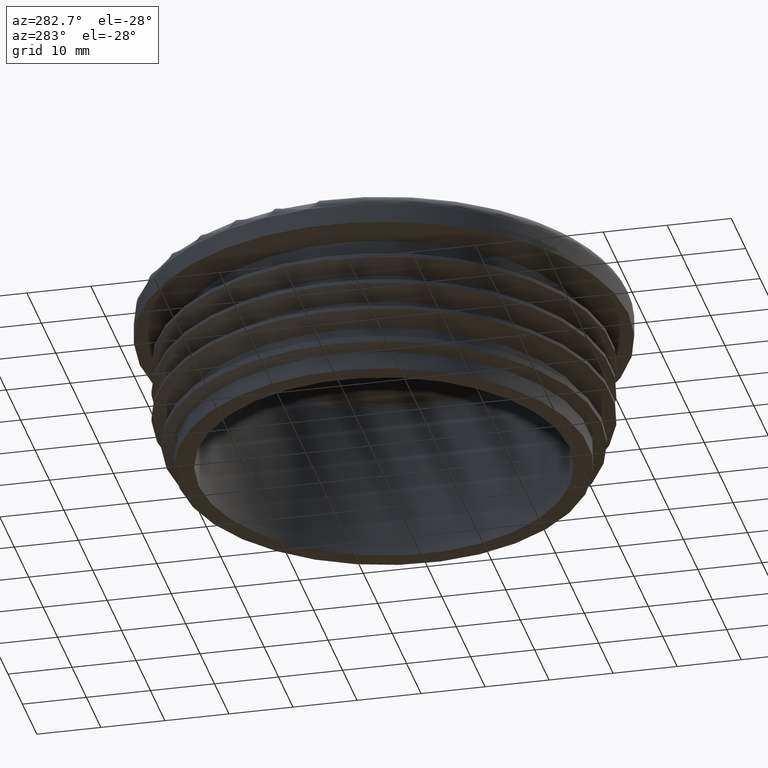
[diagram: clean part render]
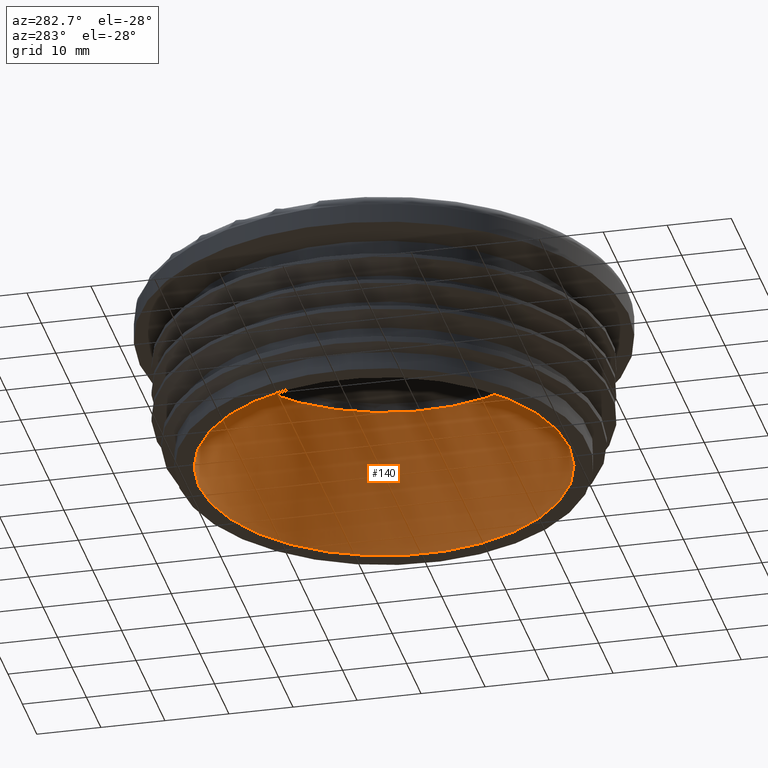
[diagram: same view with one face highlighted and labeled with its STEP entity id]
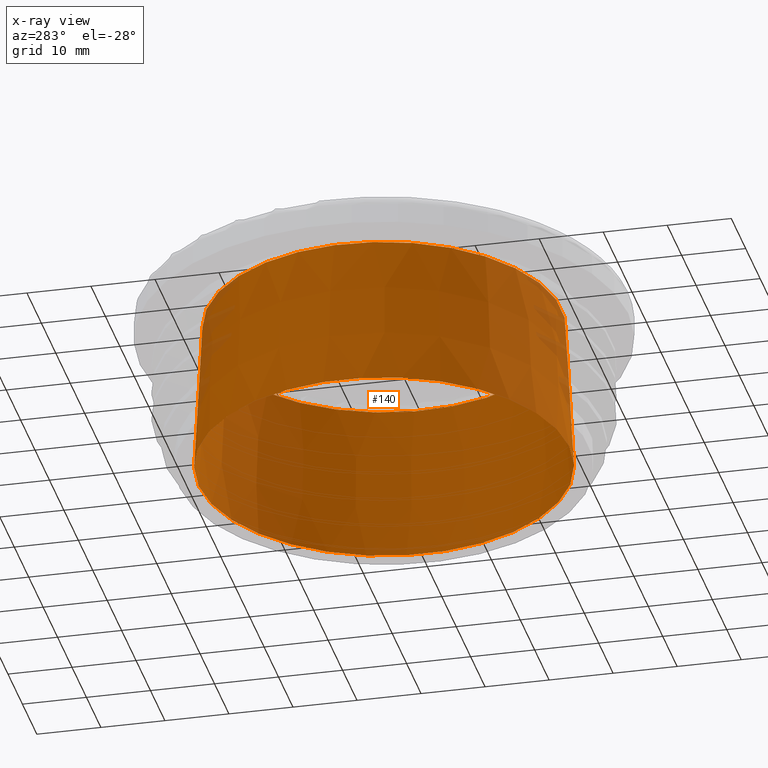
[diagram: x-ray of the same camera — body ghosted, the highlighted face saturated]
A machine part, auxiliary view. The second image highlights one B-rep face of the part: STEP entity #140.
The next image is the same camera in x-ray: the body ghosted, the highlighted face saturated — about 3% of this face is hidden behind the body in this view.
In plain terms, the highlighted conical surface has half-angle 3 deg.
Its self-contained STEP definition (entity closure, byte-faithful):
#140 = ADVANCED_FACE( '', ( #306, #307 ), #308, .F. );
#306 = FACE_BOUND( '', #778, .T. );
#307 = FACE_OUTER_BOUND( '', #779, .T. );
#308 = CONICAL_SURFACE( '', #780, 28.9500000000000, 0.0523598775598307 );
#778 = EDGE_LOOP( '', ( #1426 ) );
#779 = EDGE_LOOP( '', ( #1427 ) );
#780 = AXIS2_PLACEMENT_3D( '', #1428, #1429, #1430 );
#1426 = ORIENTED_EDGE( '', *, *, #1680, .F. );
#1427 = ORIENTED_EDGE( '', *, *, #1681, .T. );
#1428 = CARTESIAN_POINT( '', ( 0.000000000000000, -1.34706698920462E-015, 0.000000000000000 ) );
#1429 = DIRECTION( '', ( 0.000000000000000, -6.12303176911189E-017, -1.00000000000000 ) );
#1430 = DIRECTION( '', ( 0.000000000000000, 1.00000000000000, -6.12303176911189E-017 ) );
#1680 = EDGE_CURVE( '', #1957, #1957, #1958, .T. );
#1681 = EDGE_CURVE( '', #1959, #1959, #1960, .T. );
#1957 = VERTEX_POINT( '', #3309 );
#1958 = CIRCLE( '', #3310, 27.6894704859637 );
#1959 = VERTEX_POINT( '', #3311 );
#1960 = CIRCLE( '', #3312, 28.9500000000000 );
#3309 = CARTESIAN_POINT( '', ( 0.000000000000000, 27.6894704859637, 24.0523359562429 ) );
#3310 = AXIS2_PLACEMENT_3D( '', #3410, #3411, #3412 );
#3311 = CARTESIAN_POINT( '', ( 0.000000000000000, 28.9500000000000, -1.77261769715789E-015 ) );
#3312 = AXIS2_PLACEMENT_3D( '', #3413, #3414, #3415 );
#3410 = CARTESIAN_POINT( '', ( 0.000000000000000, 1.25665182609661E-016, 24.0523359562429 ) );
#3411 = DIRECTION( '', ( 0.000000000000000, -6.12303176911189E-017, -1.00000000000000 ) );
#3412 = DIRECTION( '', ( 0.000000000000000, 1.00000000000000, -6.12303176911189E-017 ) );
#3413 = CARTESIAN_POINT( '', ( 0.000000000000000, -1.34706698920462E-015, 0.000000000000000 ) );
#3414 = DIRECTION( '', ( 0.000000000000000, -6.12303176911189E-017, -1.00000000000000 ) );
#3415 = DIRECTION( '', ( 0.000000000000000, 1.00000000000000, -6.12303176911189E-017 ) );